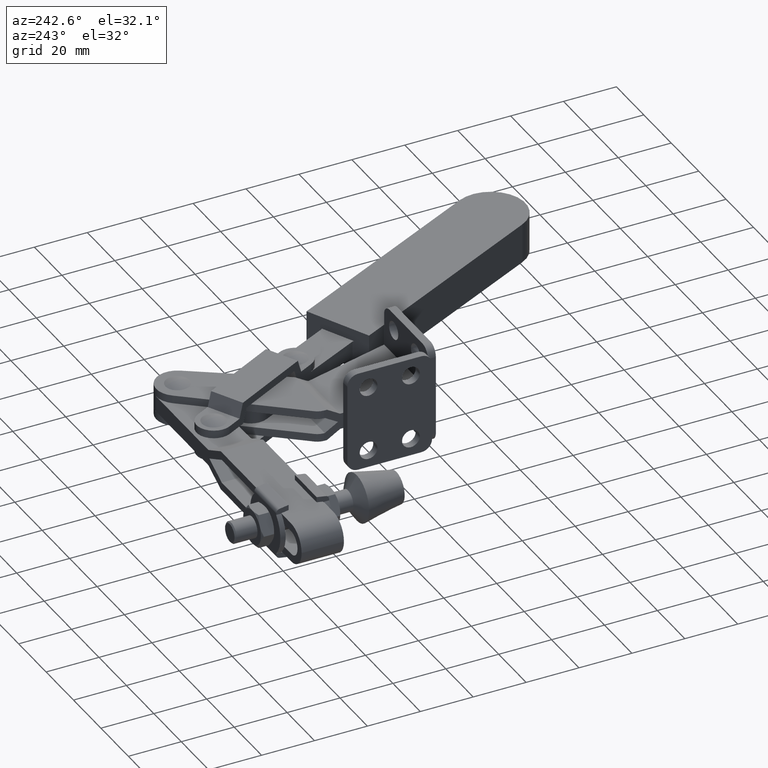
[diagram: clean part render]
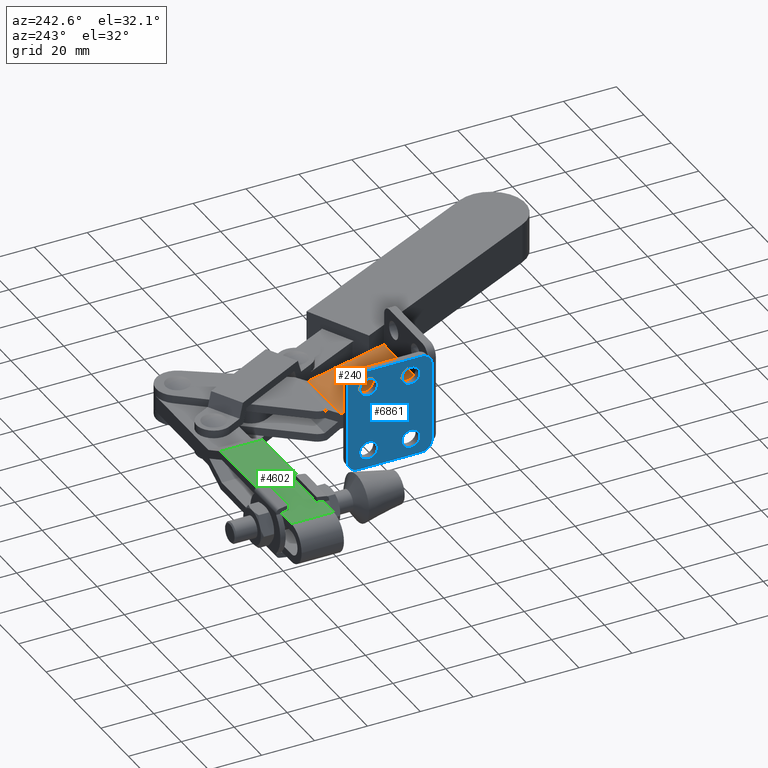
[diagram: same view with three faces highlighted in distinct colors, each labeled with its STEP entity id]
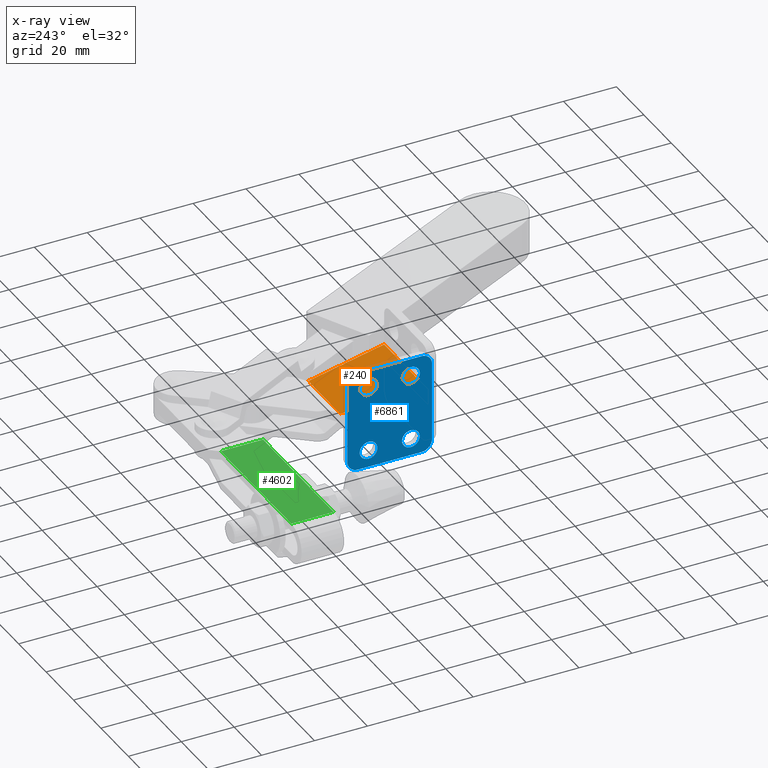
[diagram: x-ray of the same camera — body ghosted, the three highlighted faces saturated]
A machine part, auxiliary view with three faces highlighted in distinct colors.
The next image is the same camera in x-ray (body ghosted, the three faces saturated) — at least one of them is partly hidden behind the body in this view.
Their STEP definitions:

[orange] entity #240 — the highlighted planar face has unit normal (0, 0, -1).
#22 = VERTEX_POINT ( 'NONE', #2969 ) ;
#233 = LINE ( 'NONE', #8735, #4000 ) ;
#240 = ADVANCED_FACE ( 'NONE', ( #8528 ), #6875, .F. ) ;
#330 = CARTESIAN_POINT ( 'NONE',  ( 49.00000000000000000, 35.00000000000019200, 2.999999999999947200 ) ) ;
#959 = CARTESIAN_POINT ( 'NONE',  ( 49.00000000000000000, -24.20113455339107500, 2.999999999999947200 ) ) ;
#1005 = EDGE_LOOP ( 'NONE', ( #3271, #1097, #1149, #5751, #5859, #9273 ) ) ;
#1097 = ORIENTED_EDGE ( 'NONE', *, *, #8483, .T. ) ;
#1149 = ORIENTED_EDGE ( 'NONE', *, *, #7075, .F. ) ;
#1235 = LINE ( 'NONE', #7623, #3172 ) ;
#1387 = EDGE_CURVE ( 'NONE', #22, #7619, #2979, .T. ) ;
#1721 = DIRECTION ( 'NONE',  ( -1.000000000000000000, 0.0000000000000000000, 0.0000000000000000000 ) ) ;
#1852 = EDGE_CURVE ( 'NONE', #6240, #2300, #3274, .T. ) ;
#2081 = CARTESIAN_POINT ( 'NONE',  ( 49.00000000000000000, 36.17238167372760700, 2.999999999999947200 ) ) ;
#2300 = VERTEX_POINT ( 'NONE', #3885 ) ;
#2433 = VECTOR ( 'NONE', #1721, 1000.000000000000000 ) ;
#2468 = VERTEX_POINT ( 'NONE', #8870 ) ;
#2969 = CARTESIAN_POINT ( 'NONE',  ( 3.009999999999998900, 35.00000000000019200, 2.999999999999947200 ) ) ;
#2979 = LINE ( 'NONE', #330, #2433 ) ;
#2986 = CARTESIAN_POINT ( 'NONE',  ( 3.000000000000061700, 35.00000000000014200, 2.999999999999947200 ) ) ;
#3050 = VECTOR ( 'NONE', #9043, 1000.000000000000000 ) ;
#3172 = VECTOR ( 'NONE', #7409, 1000.000000000000000 ) ;
#3271 = ORIENTED_EDGE ( 'NONE', *, *, #1387, .F. ) ;
#3274 = LINE ( 'NONE', #2081, #3050 ) ;
#3283 = DIRECTION ( 'NONE',  ( -1.769140685160614300E-016, 1.000000000000000000, 0.0000000000000000000 ) ) ;
#3423 = LINE ( 'NONE', #7578, #7156 ) ;
#3619 = CARTESIAN_POINT ( 'NONE',  ( 26.21821734055236400, 36.17238167372760700, 2.999999999999947200 ) ) ;
#3885 = CARTESIAN_POINT ( 'NONE',  ( 3.000000000000061300, 36.17238167372760700, 2.999999999999947200 ) ) ;
#4000 = VECTOR ( 'NONE', #8151, 1000.000000000000200 ) ;
#4058 = DIRECTION ( 'NONE',  ( 0.0000000000000000000, 0.0000000000000000000, -1.000000000000000000 ) ) ;
#4203 = DIRECTION ( 'NONE',  ( -1.000000000000000000, 0.0000000000000000000, 0.0000000000000000000 ) ) ;
#4676 = LINE ( 'NONE', #9085, #6363 ) ;
#5037 = AXIS2_PLACEMENT_3D ( 'NONE', #959, #4058, #4203 ) ;
#5070 = CARTESIAN_POINT ( 'NONE',  ( 3.009999999999998900, 2.999999999999990200, 2.999999999999947200 ) ) ;
#5751 = ORIENTED_EDGE ( 'NONE', *, *, #5894, .F. ) ;
#5859 = ORIENTED_EDGE ( 'NONE', *, *, #1852, .T. ) ;
#5894 = EDGE_CURVE ( 'NONE', #6240, #2468, #233, .T. ) ;
#5949 = VERTEX_POINT ( 'NONE', #5070 ) ;
#6240 = VERTEX_POINT ( 'NONE', #3619 ) ;
#6363 = VECTOR ( 'NONE', #6869, 1000.000000000000000 ) ;
#6761 = EDGE_CURVE ( 'NONE', #7619, #2300, #3423, .T. ) ;
#6869 = DIRECTION ( 'NONE',  ( -1.000000000000000000, -1.124869700630545500E-016, -1.510788252431533400E-032 ) ) ;
#6875 = PLANE ( 'NONE',  #5037 ) ;
#7075 = EDGE_CURVE ( 'NONE', #2468, #5949, #4676, .T. ) ;
#7156 = VECTOR ( 'NONE', #3283, 1000.000000000000000 ) ;
#7409 = DIRECTION ( 'NONE',  ( 0.0000000000000000000, -1.000000000000000000, 0.0000000000000000000 ) ) ;
#7578 = CARTESIAN_POINT ( 'NONE',  ( 3.000000000000071900, -24.20113455339108200, 2.999999999999947200 ) ) ;
#7619 = VERTEX_POINT ( 'NONE', #2986 ) ;
#7623 = CARTESIAN_POINT ( 'NONE',  ( 3.009999999999998900, -24.20113455339107500, 2.999999999999947200 ) ) ;
#8151 = DIRECTION ( 'NONE',  ( 0.2559159292367867400, -0.9666990416685390400, 0.0000000000000000000 ) ) ;
#8483 = EDGE_CURVE ( 'NONE', #22, #5949, #1235, .T. ) ;
#8528 = FACE_OUTER_BOUND ( 'NONE', #1005, .T. ) ;
#8735 = CARTESIAN_POINT ( 'NONE',  ( 42.64629035337521400, -25.88316322853094700, 2.999999999999947200 ) ) ;
#8870 = CARTESIAN_POINT ( 'NONE',  ( 34.99999999999992900, 2.999999999999993800, 2.999999999999947200 ) ) ;
#9043 = DIRECTION ( 'NONE',  ( -1.000000000000000000, -0.0000000000000000000, 0.0000000000000000000 ) ) ;
#9085 = CARTESIAN_POINT ( 'NONE',  ( -25.41349567437940800, 2.999999999999987100, 2.999999999999947200 ) ) ;
#9273 = ORIENTED_EDGE ( 'NONE', *, *, #6761, .F. ) ;

[blue] entity #6861 — the highlighted planar face has unit normal (-1, 0, 0).
#58 = CARTESIAN_POINT ( 'NONE',  ( 0.0000000000000000000, 27.00000000000022000, 9.150000000001313100 ) ) ;
#151 = LINE ( 'NONE', #7254, #1179 ) ;
#270 = DIRECTION ( 'NONE',  ( 0.0000000000000000000, 0.0000000000000000000, 1.000000000000000000 ) ) ;
#321 = DIRECTION ( 'NONE',  ( -1.000000000000000000, 0.0000000000000000000, 0.0000000000000000000 ) ) ;
#338 = CARTESIAN_POINT ( 'NONE',  ( 0.0000000000000000000, 11.00000000000022200, 9.150000000001309500 ) ) ;
#364 = DIRECTION ( 'NONE',  ( -1.000000000000000000, 0.0000000000000000000, 0.0000000000000000000 ) ) ;
#433 = EDGE_LOOP ( 'NONE', ( #9401, #1551 ) ) ;
#453 = CARTESIAN_POINT ( 'NONE',  ( 0.0000000000000000000, 11.00000000000022200, -12.50000000000131100 ) ) ;
#512 = EDGE_CURVE ( 'NONE', #6064, #1920, #3702, .T. ) ;
#594 = EDGE_CURVE ( 'NONE', #6871, #6228, #2219, .T. ) ;
#617 = AXIS2_PLACEMENT_3D ( 'NONE', #1648, #9149, #4797 ) ;
#673 = ORIENTED_EDGE ( 'NONE', *, *, #5804, .F. ) ;
#675 = CARTESIAN_POINT ( 'NONE',  ( 0.0000000000000000000, 11.00000000000022200, 15.85000000000131100 ) ) ;
#1015 = AXIS2_PLACEMENT_3D ( 'NONE', #2497, #2164, #3065 ) ;
#1091 = VERTEX_POINT ( 'NONE', #5199 ) ;
#1179 = VECTOR ( 'NONE', #8319, 1000.000000000000000 ) ;
#1203 = FACE_BOUND ( 'NONE', #5889, .T. ) ;
#1240 = CIRCLE ( 'NONE', #9071, 3.350000000000000500 ) ;
#1310 = CIRCLE ( 'NONE', #9428, 3.999999999999868100 ) ;
#1551 = ORIENTED_EDGE ( 'NONE', *, *, #8058, .F. ) ;
#1610 = EDGE_CURVE ( 'NONE', #1920, #7305, #6888, .T. ) ;
#1636 = AXIS2_PLACEMENT_3D ( 'NONE', #453, #321, #8906 ) ;
#1648 = CARTESIAN_POINT ( 'NONE',  ( 0.0000000000000000000, 27.00000000000022000, -12.50000000000131300 ) ) ;
#1750 = DIRECTION ( 'NONE',  ( 0.0000000000000000000, 0.0000000000000000000, 1.000000000000000000 ) ) ;
#1766 = VECTOR ( 'NONE', #5725, 1000.000000000000000 ) ;
#1920 = VERTEX_POINT ( 'NONE', #5381 ) ;
#1935 = EDGE_CURVE ( 'NONE', #2108, #8696, #8615, .T. ) ;
#1975 = DIRECTION ( 'NONE',  ( 0.0000000000000000000, 0.0000000000000000000, -1.000000000000000000 ) ) ;
#1979 = EDGE_LOOP ( 'NONE', ( #2368, #2972 ) ) ;
#2059 = AXIS2_PLACEMENT_3D ( 'NONE', #7261, #7202, #8869 ) ;
#2082 = DIRECTION ( 'NONE',  ( 0.0000000000000000000, 1.000000000000000000, 5.784821929059754800E-015 ) ) ;
#2108 = VERTEX_POINT ( 'NONE', #9329 ) ;
#2116 = VERTEX_POINT ( 'NONE', #2570 ) ;
#2136 = DIRECTION ( 'NONE',  ( 0.0000000000000000000, 0.0000000000000000000, -1.000000000000000000 ) ) ;
#2164 = DIRECTION ( 'NONE',  ( -1.000000000000000000, 0.0000000000000000000, 0.0000000000000000000 ) ) ;
#2185 = AXIS2_PLACEMENT_3D ( 'NONE', #3914, #3524, #6978 ) ;
#2219 = CIRCLE ( 'NONE', #617, 3.349999999999998800 ) ;
#2275 = EDGE_CURVE ( 'NONE', #5119, #6064, #5446, .T. ) ;
#2341 = DIRECTION ( 'NONE',  ( 1.000000000000000000, -0.0000000000000000000, -0.0000000000000000000 ) ) ;
#2347 = FACE_BOUND ( 'NONE', #8689, .T. ) ;
#2368 = ORIENTED_EDGE ( 'NONE', *, *, #1935, .F. ) ;
#2397 = CARTESIAN_POINT ( 'NONE',  ( 0.0000000000000000000, 11.00000000000022200, -9.150000000001309500 ) ) ;
#2444 = CIRCLE ( 'NONE', #1636, 3.350000000000000500 ) ;
#2497 = CARTESIAN_POINT ( 'NONE',  ( 0.0000000000000000000, 27.00000000000022000, 12.50000000000131300 ) ) ;
#2570 = CARTESIAN_POINT ( 'NONE',  ( 0.0000000000000000000, 35.00000000000008500, 15.00000000000131800 ) ) ;
#2851 = EDGE_CURVE ( 'NONE', #7305, #4201, #1310, .T. ) ;
#2900 = ORIENTED_EDGE ( 'NONE', *, *, #6958, .F. ) ;
#2972 = ORIENTED_EDGE ( 'NONE', *, *, #5856, .F. ) ;
#3020 = ORIENTED_EDGE ( 'NONE', *, *, #2851, .F. ) ;
#3065 = DIRECTION ( 'NONE',  ( 0.0000000000000000000, 0.0000000000000000000, -1.000000000000000000 ) ) ;
#3100 = DIRECTION ( 'NONE',  ( -1.000000000000000000, 0.0000000000000000000, 0.0000000000000000000 ) ) ;
#3101 = CARTESIAN_POINT ( 'NONE',  ( 0.0000000000000000000, 31.00999999999983500, -19.00000000000144600 ) ) ;
#3135 = FACE_BOUND ( 'NONE', #433, .T. ) ;
#3153 = ORIENTED_EDGE ( 'NONE', *, *, #1610, .F. ) ;
#3281 = CIRCLE ( 'NONE', #2185, 3.350000000000000500 ) ;
#3291 = CARTESIAN_POINT ( 'NONE',  ( 0.0000000000000000000, 11.00000000000022200, -15.85000000000131100 ) ) ;
#3339 = DIRECTION ( 'NONE',  ( -1.000000000000000000, 0.0000000000000000000, 0.0000000000000000000 ) ) ;
#3402 = CIRCLE ( 'NONE', #1015, 3.349999999999998800 ) ;
#3405 = ORIENTED_EDGE ( 'NONE', *, *, #2275, .F. ) ;
#3524 = DIRECTION ( 'NONE',  ( -1.000000000000000000, 0.0000000000000000000, 0.0000000000000000000 ) ) ;
#3580 = ORIENTED_EDGE ( 'NONE', *, *, #8981, .T. ) ;
#3702 = CIRCLE ( 'NONE', #2059, 4.019999999999435600 ) ;
#3811 = DIRECTION ( 'NONE',  ( 0.0000000000000000000, 0.0000000000000000000, -1.000000000000000000 ) ) ;
#3887 = VECTOR ( 'NONE', #2082, 1000.000000000000000 ) ;
#3906 = CARTESIAN_POINT ( 'NONE',  ( 0.0000000000000000000, 27.00000000000022000, -9.150000000001313100 ) ) ;
#3914 = CARTESIAN_POINT ( 'NONE',  ( 0.0000000000000000000, 11.00000000000022200, 12.50000000000131100 ) ) ;
#4124 = CARTESIAN_POINT ( 'NONE',  ( 0.0000000000000000000, 27.00000000000022000, -15.85000000000131100 ) ) ;
#4197 = CARTESIAN_POINT ( 'NONE',  ( 0.0000000000000000000, 31.00999999999983500, 19.00000000000144600 ) ) ;
#4201 = VERTEX_POINT ( 'NONE', #6099 ) ;
#4281 = AXIS2_PLACEMENT_3D ( 'NONE', #9266, #3100, #7567 ) ;
#4311 = ORIENTED_EDGE ( 'NONE', *, *, #5838, .T. ) ;
#4336 = ORIENTED_EDGE ( 'NONE', *, *, #594, .F. ) ;
#4429 = CARTESIAN_POINT ( 'NONE',  ( 0.0000000000000000000, 11.00000000000022200, -12.50000000000131100 ) ) ;
#4456 = ORIENTED_EDGE ( 'NONE', *, *, #8788, .F. ) ;
#4693 = CIRCLE ( 'NONE', #6096, 3.350000000000000500 ) ;
#4797 = DIRECTION ( 'NONE',  ( 0.0000000000000000000, 0.0000000000000000000, 1.000000000000000000 ) ) ;
#4881 = CARTESIAN_POINT ( 'NONE',  ( 0.0000000000000000000, 11.00000000000022200, 12.50000000000131100 ) ) ;
#4995 = DIRECTION ( 'NONE',  ( -1.000000000000000000, 0.0000000000000000000, 0.0000000000000000000 ) ) ;
#5058 = EDGE_CURVE ( 'NONE', #2116, #4201, #151, .T. ) ;
#5119 = VERTEX_POINT ( 'NONE', #8103 ) ;
#5199 = CARTESIAN_POINT ( 'NONE',  ( 0.0000000000000000000, 7.019999999999655800, 19.00000000000130700 ) ) ;
#5381 = CARTESIAN_POINT ( 'NONE',  ( 0.0000000000000000000, 7.019999999999655800, -19.00000000000130700 ) ) ;
#5397 = PLANE ( 'NONE',  #4281 ) ;
#5444 = AXIS2_PLACEMENT_3D ( 'NONE', #7342, #7095, #6838 ) ;
#5446 = LINE ( 'NONE', #9393, #1766 ) ;
#5475 = ORIENTED_EDGE ( 'NONE', *, *, #512, .F. ) ;
#5725 = DIRECTION ( 'NONE',  ( 0.0000000000000000000, 5.784821929059754800E-015, -1.000000000000000000 ) ) ;
#5804 = EDGE_CURVE ( 'NONE', #5942, #8921, #1240, .T. ) ;
#5838 = EDGE_CURVE ( 'NONE', #1091, #9224, #9216, .T. ) ;
#5856 = EDGE_CURVE ( 'NONE', #8696, #2108, #3402, .T. ) ;
#5889 = EDGE_LOOP ( 'NONE', ( #673, #4456 ) ) ;
#5942 = VERTEX_POINT ( 'NONE', #675 ) ;
#6064 = VERTEX_POINT ( 'NONE', #7755 ) ;
#6094 = CARTESIAN_POINT ( 'NONE',  ( 0.0000000000000000000, 31.00999999999983500, 19.00000000000144600 ) ) ;
#6096 = AXIS2_PLACEMENT_3D ( 'NONE', #4429, #4995, #270 ) ;
#6099 = CARTESIAN_POINT ( 'NONE',  ( 0.0000000000000000000, 35.00000000000008500, -15.00000000000131800 ) ) ;
#6228 = VERTEX_POINT ( 'NONE', #4124 ) ;
#6255 = CIRCLE ( 'NONE', #5444, 3.999999999999868100 ) ;
#6336 = ORIENTED_EDGE ( 'NONE', *, *, #6945, .T. ) ;
#6395 = EDGE_LOOP ( 'NONE', ( #7828, #3020, #3153, #5475, #3405, #6336, #4311, #3580 ) ) ;
#6438 = AXIS2_PLACEMENT_3D ( 'NONE', #9195, #364, #1750 ) ;
#6550 = CIRCLE ( 'NONE', #7901, 3.349999999999998800 ) ;
#6623 = VERTEX_POINT ( 'NONE', #2397 ) ;
#6780 = CIRCLE ( 'NONE', #6438, 4.019999999999435600 ) ;
#6781 = EDGE_CURVE ( 'NONE', #6623, #7359, #2444, .T. ) ;
#6838 = DIRECTION ( 'NONE',  ( 0.0000000000000000000, 0.0000000000000000000, 1.000000000000000000 ) ) ;
#6861 = ADVANCED_FACE ( 'NONE', ( #2347, #7913, #1203, #3135, #8699 ), #5397, .T. ) ;
#6871 = VERTEX_POINT ( 'NONE', #3906 ) ;
#6888 = LINE ( 'NONE', #3101, #9378 ) ;
#6945 = EDGE_CURVE ( 'NONE', #5119, #1091, #6780, .T. ) ;
#6958 = EDGE_CURVE ( 'NONE', #6228, #6871, #6550, .T. ) ;
#6978 = DIRECTION ( 'NONE',  ( 0.0000000000000000000, 0.0000000000000000000, -1.000000000000000000 ) ) ;
#7095 = DIRECTION ( 'NONE',  ( -1.000000000000000000, 0.0000000000000000000, 0.0000000000000000000 ) ) ;
#7136 = AXIS2_PLACEMENT_3D ( 'NONE', #7604, #7640, #1975 ) ;
#7202 = DIRECTION ( 'NONE',  ( 1.000000000000000000, -0.0000000000000000000, -0.0000000000000000000 ) ) ;
#7254 = CARTESIAN_POINT ( 'NONE',  ( 0.0000000000000000000, 34.99999999999923300, 170.5987876360225600 ) ) ;
#7261 = CARTESIAN_POINT ( 'NONE',  ( 0.0000000000000000000, 7.019999999999655800, -14.98000000000187300 ) ) ;
#7305 = VERTEX_POINT ( 'NONE', #9242 ) ;
#7342 = CARTESIAN_POINT ( 'NONE',  ( 0.0000000000000000000, 31.00000000001975300, 15.00001250002105900 ) ) ;
#7359 = VERTEX_POINT ( 'NONE', #3291 ) ;
#7567 = DIRECTION ( 'NONE',  ( 0.0000000000000000000, 0.0000000000000000000, 1.000000000000000000 ) ) ;
#7604 = CARTESIAN_POINT ( 'NONE',  ( 0.0000000000000000000, 27.00000000000022000, 12.50000000000131300 ) ) ;
#7640 = DIRECTION ( 'NONE',  ( -1.000000000000000000, 0.0000000000000000000, 0.0000000000000000000 ) ) ;
#7755 = CARTESIAN_POINT ( 'NONE',  ( 0.0000000000000000000, 3.000000000000220300, -14.98000000000187300 ) ) ;
#7828 = ORIENTED_EDGE ( 'NONE', *, *, #5058, .T. ) ;
#7901 = AXIS2_PLACEMENT_3D ( 'NONE', #9122, #8978, #8254 ) ;
#7913 = FACE_BOUND ( 'NONE', #1979, .T. ) ;
#8058 = EDGE_CURVE ( 'NONE', #7359, #6623, #4693, .T. ) ;
#8103 = CARTESIAN_POINT ( 'NONE',  ( 0.0000000000000000000, 3.000000000000220300, 14.98000000000187300 ) ) ;
#8200 = DIRECTION ( 'NONE',  ( 0.0000000000000000000, 1.000000000000000000, -5.784821929059754800E-015 ) ) ;
#8254 = DIRECTION ( 'NONE',  ( 0.0000000000000000000, 0.0000000000000000000, 1.000000000000000000 ) ) ;
#8319 = DIRECTION ( 'NONE',  ( 0.0000000000000000000, 5.784821929059754800E-015, -1.000000000000000000 ) ) ;
#8615 = CIRCLE ( 'NONE', #7136, 3.349999999999998800 ) ;
#8689 = EDGE_LOOP ( 'NONE', ( #4336, #2900 ) ) ;
#8696 = VERTEX_POINT ( 'NONE', #58 ) ;
#8699 = FACE_OUTER_BOUND ( 'NONE', #6395, .T. ) ;
#8788 = EDGE_CURVE ( 'NONE', #8921, #5942, #3281, .T. ) ;
#8869 = DIRECTION ( 'NONE',  ( 0.0000000000000000000, 0.0000000000000000000, -1.000000000000000000 ) ) ;
#8906 = DIRECTION ( 'NONE',  ( 0.0000000000000000000, 0.0000000000000000000, 1.000000000000000000 ) ) ;
#8921 = VERTEX_POINT ( 'NONE', #338 ) ;
#8978 = DIRECTION ( 'NONE',  ( -1.000000000000000000, 0.0000000000000000000, 0.0000000000000000000 ) ) ;
#8981 = EDGE_CURVE ( 'NONE', #9224, #2116, #6255, .T. ) ;
#9071 = AXIS2_PLACEMENT_3D ( 'NONE', #4881, #3339, #2136 ) ;
#9122 = CARTESIAN_POINT ( 'NONE',  ( 0.0000000000000000000, 27.00000000000022000, -12.50000000000131300 ) ) ;
#9149 = DIRECTION ( 'NONE',  ( -1.000000000000000000, 0.0000000000000000000, 0.0000000000000000000 ) ) ;
#9195 = CARTESIAN_POINT ( 'NONE',  ( 0.0000000000000000000, 7.019999999999655800, 14.98000000000187300 ) ) ;
#9216 = LINE ( 'NONE', #4197, #3887 ) ;
#9224 = VERTEX_POINT ( 'NONE', #6094 ) ;
#9226 = CARTESIAN_POINT ( 'NONE',  ( 0.0000000000000000000, 31.00000000001975300, -15.00001250002105900 ) ) ;
#9242 = CARTESIAN_POINT ( 'NONE',  ( 0.0000000000000000000, 31.00999999999983500, -19.00000000000144600 ) ) ;
#9266 = CARTESIAN_POINT ( 'NONE',  ( 0.0000000000000000000, 2.999999999999231300, 170.5987876360223900 ) ) ;
#9329 = CARTESIAN_POINT ( 'NONE',  ( 0.0000000000000000000, 27.00000000000022000, 15.85000000000131100 ) ) ;
#9378 = VECTOR ( 'NONE', #8200, 1000.000000000000000 ) ;
#9393 = CARTESIAN_POINT ( 'NONE',  ( 0.0000000000000000000, 2.999999999999231300, 170.5987876360223900 ) ) ;
#9401 = ORIENTED_EDGE ( 'NONE', *, *, #6781, .F. ) ;
#9428 = AXIS2_PLACEMENT_3D ( 'NONE', #9226, #2341, #3811 ) ;

[green] entity #4602 — the highlighted planar face has unit normal (0, 0, -1).
#155 = DIRECTION ( 'NONE',  ( 7.573328176411969400E-030, 3.714974382124920400E-015, -1.000000000000000000 ) ) ;
#246 = VECTOR ( 'NONE', #3642, 1000.000000000000000 ) ;
#855 = LINE ( 'NONE', #5296, #7116 ) ;
#912 = DIRECTION ( 'NONE',  ( 1.229485263598562000E-016, 1.000000000000000000, 3.714974382124920400E-015 ) ) ;
#1131 = DIRECTION ( 'NONE',  ( -1.000000000000000000, 1.229485263598562000E-016, -7.118237074455223700E-030 ) ) ;
#1594 = ORIENTED_EDGE ( 'NONE', *, *, #5982, .T. ) ;
#2050 = EDGE_CURVE ( 'NONE', #5581, #5228, #9435, .T. ) ;
#2151 = AXIS2_PLACEMENT_3D ( 'NONE', #4424, #155, #7507 ) ;
#2459 = CARTESIAN_POINT ( 'NONE',  ( -57.49999999999879900, 85.99999999999933200, 7.500000000000001800 ) ) ;
#2734 = CARTESIAN_POINT ( 'NONE',  ( -57.49999999999879900, 69.99999999999933200, 7.499999999999941400 ) ) ;
#3105 = CARTESIAN_POINT ( 'NONE',  ( -57.49999999999879900, 69.99999999999933200, 7.499999999999941400 ) ) ;
#3430 = VERTEX_POINT ( 'NONE', #2459 ) ;
#3642 = DIRECTION ( 'NONE',  ( 1.229485263598562000E-016, 1.000000000000000000, 3.714974382124920400E-015 ) ) ;
#3981 = EDGE_LOOP ( 'NONE', ( #1594, #4007, #4553, #8719 ) ) ;
#4007 = ORIENTED_EDGE ( 'NONE', *, *, #5615, .F. ) ;
#4282 = PLANE ( 'NONE',  #2151 ) ;
#4424 = CARTESIAN_POINT ( 'NONE',  ( -57.49999999999879900, 69.99999999999933200, 7.499999999999941400 ) ) ;
#4428 = VERTEX_POINT ( 'NONE', #7716 ) ;
#4553 = ORIENTED_EDGE ( 'NONE', *, *, #2050, .F. ) ;
#4602 = ADVANCED_FACE ( 'NONE', ( #6400 ), #4282, .F. ) ;
#5228 = VERTEX_POINT ( 'NONE', #3105 ) ;
#5262 = LINE ( 'NONE', #7795, #7721 ) ;
#5296 = CARTESIAN_POINT ( 'NONE',  ( -57.49999999999879900, 85.99999999999933200, 7.500000000000001800 ) ) ;
#5466 = EDGE_CURVE ( 'NONE', #5581, #4428, #6294, .T. ) ;
#5581 = VERTEX_POINT ( 'NONE', #7884 ) ;
#5615 = EDGE_CURVE ( 'NONE', #5228, #3430, #5262, .T. ) ;
#5982 = EDGE_CURVE ( 'NONE', #4428, #3430, #855, .T. ) ;
#6294 = LINE ( 'NONE', #9403, #246 ) ;
#6400 = FACE_OUTER_BOUND ( 'NONE', #3981, .T. ) ;
#7116 = VECTOR ( 'NONE', #1131, 1000.000000000000000 ) ;
#7507 = DIRECTION ( 'NONE',  ( 1.229485263598562000E-016, 1.000000000000000000, 3.714974382124920400E-015 ) ) ;
#7716 = CARTESIAN_POINT ( 'NONE',  ( -5.999999999998791200, 85.99999999999931800, 7.500000000000001800 ) ) ;
#7717 = VECTOR ( 'NONE', #7949, 1000.000000000000000 ) ;
#7721 = VECTOR ( 'NONE', #912, 1000.000000000000000 ) ;
#7795 = CARTESIAN_POINT ( 'NONE',  ( -57.49999999999879900, 69.99999999999933200, 7.499999999999941400 ) ) ;
#7884 = CARTESIAN_POINT ( 'NONE',  ( -5.999999999998791200, 69.99999999999931800, 7.499999999999941400 ) ) ;
#7949 = DIRECTION ( 'NONE',  ( -1.000000000000000000, 1.229485263598562000E-016, -7.118237074455223700E-030 ) ) ;
#8719 = ORIENTED_EDGE ( 'NONE', *, *, #5466, .T. ) ;
#9403 = CARTESIAN_POINT ( 'NONE',  ( -5.999999999998791200, 69.99999999999931800, 7.499999999999941400 ) ) ;
#9435 = LINE ( 'NONE', #2734, #7717 ) ;